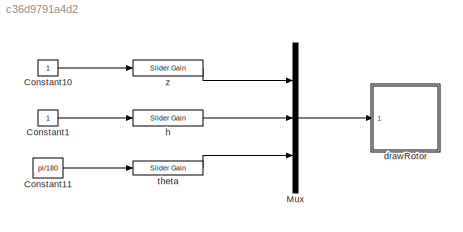
MODEL slx_c36d9791a4d2
KIND model
CONFIG AbsTol = auto
CONFIG FixedStep = auto
CONFIG MaxStep = auto
CONFIG MinStep = auto
CONFIG RelTol = 1e-3
CONFIG SampleTimeConstraint = Unconstrained
CONFIG Solver = ode45
CONFIG SolverMode = Auto
CONFIG SolverName = ode45
CONFIG StartTime = 0.0
CONFIG StopTime = 1000000
BLOCK [Constant] Constant1
BLOCK [Constant] Constant10
BLOCK [Constant] Constant11
  Value = pi/180
BLOCK [Mux] Mux
  DisplayOption = bar
  Inputs = 3
  Ports = [3, 1]
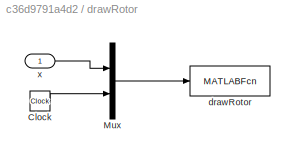
BLOCK [SubSystem] drawRotor
  Ports = [1]
  RequestExecContextInheritance = off
BLOCK [Clock] drawRotor/Clock
BLOCK [Mux] drawRotor/Mux
  DisplayOption = bar
  Inputs = 2
  Ports = [2, 1]
BLOCK [MATLABFcn] drawRotor/drawRotor
  MATLABFcn = drawRotor(u)
  OutputDimensions = 0
  Ports = [1]
  SampleTime = 0.1
BLOCK [Inport] drawRotor/x
  IconDisplay = Port number
BLOCK [Reference] h  REF=simulink/Math
Operations/Slider
Gain
  Ports = [1, 1]
  SourceBlock = simulink/Math\nOperations/Slider\nGain
  SourceType = Slider Gain
  gain = 0
  high = 100
  low = 0
BLOCK [Reference] theta  REF=simulink/Math
Operations/Slider
Gain
  Ports = [1, 1]
  SourceBlock = simulink/Math\nOperations/Slider\nGain
  SourceType = Slider Gain
  gain = 25.2
  high = 180
  low = -180
BLOCK [Reference] z  REF=simulink/Math
Operations/Slider
Gain
  Ports = [1, 1]
  SourceBlock = simulink/Math\nOperations/Slider\nGain
  SourceType = Slider Gain
  gain = 51
  high = 100
  low = 0
LINE Constant10:1 -> z:1
LINE Constant11:1 -> theta:1
LINE Constant1:1 -> h:1
LINE Mux:1 -> drawRotor:1
LINE drawRotor/Clock:1 -> drawRotor/Mux:2
LINE drawRotor/Mux:1 -> drawRotor/drawRotor:1
LINE drawRotor/x:1 -> drawRotor/Mux:1
LINE h:1 -> Mux:2
LINE theta:1 -> Mux:3
LINE z:1 -> Mux:1
